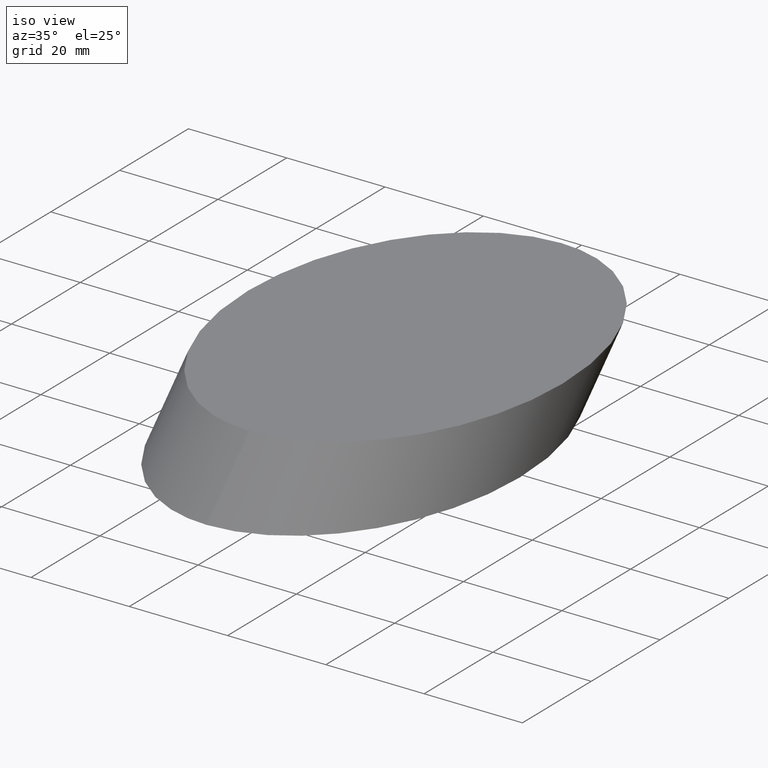
[diagram: clean part render]
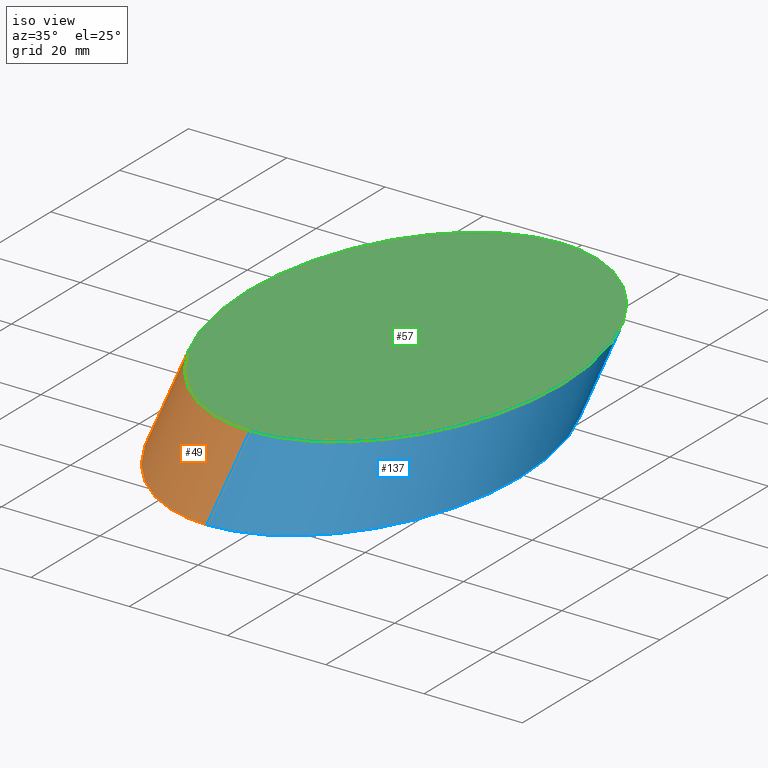
[diagram: same view with three faces highlighted in distinct colors, each labeled with its STEP entity id]
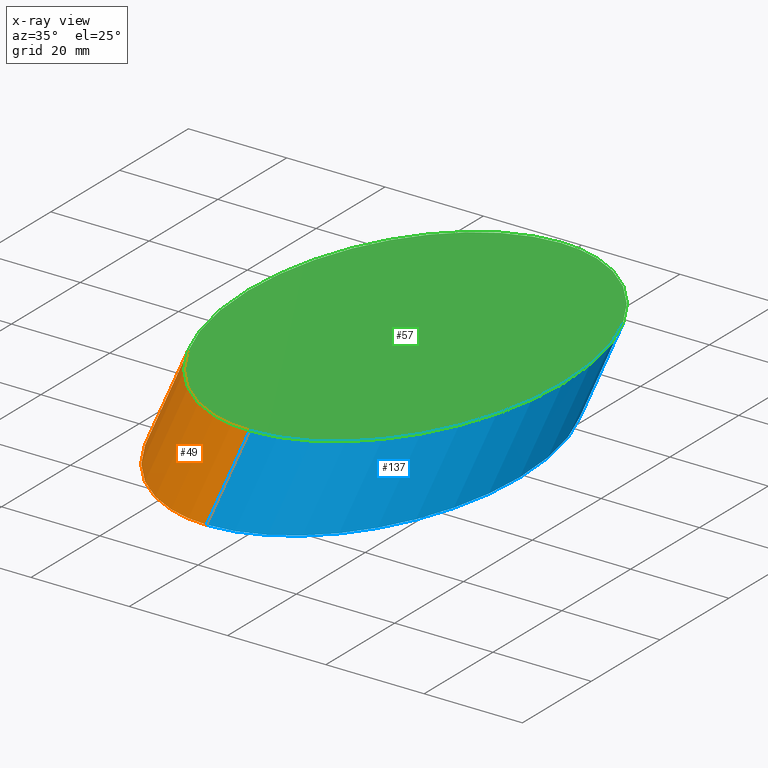
[diagram: x-ray of the same camera — body ghosted, the three highlighted faces saturated]
A machine part, iso view with three faces highlighted in distinct colors.
The next image is the same camera in x-ray (body ghosted, the three faces saturated) — at least one of them is partly hidden behind the body in this view.
Their STEP definitions:

[orange] entity #49 — the highlighted face is a freeform B-spline surface patch.
#1 = CARTESIAN_POINT ( 'NONE',  ( 54.39238298171604700, -9.471128469677900300, -8.673617379884035500E-015 ) ) ;
#4 = ORIENTED_EDGE ( 'NONE', *, *, #139, .T. ) ;
#5 = CARTESIAN_POINT ( 'NONE',  ( -9.607617018283935600, 81.04887153032210300, 0.0000000000000000000 ) ) ;
#10 = VERTEX_POINT ( 'NONE', #103 ) ;
#12 = CARTESIAN_POINT ( 'NONE',  ( -9.607617018283940900, 3.030519421700327500, 12.50164789137811800 ) ) ;
#14 = CARTESIAN_POINT ( 'NONE',  ( 54.39238298171605400, 93.55051942170031500, 12.50164789137811800 ) ) ;
#15 = ORIENTED_EDGE ( 'NONE', *, *, #58, .F. ) ;
#17 = CARTESIAN_POINT ( 'NONE',  ( 54.39238298171605400, 93.55051942170031500, 12.50164789137811800 ) ) ;
#24 = VECTOR ( 'NONE', #108, 1000.000000000000100 ) ;
#26 = FACE_OUTER_BOUND ( 'NONE', #113, .T. ) ;
#31 =( BOUNDED_CURVE ( )  B_SPLINE_CURVE ( 3, ( #14, #147, #12, #102 ),
 .UNSPECIFIED., .F., .T. ) 
 B_SPLINE_CURVE_WITH_KNOTS ( ( 4, 4 ),
 ( 0.0000000000000000000, 3.141592653589793100 ),
 .UNSPECIFIED. ) 
 CURVE ( )  GEOMETRIC_REPRESENTATION_ITEM ( )  RATIONAL_B_SPLINE_CURVE ( ( 1.000000000000000000, 0.3333333333333333700, 0.3333333333333333700, 1.000000000000000000 ) ) 
 REPRESENTATION_ITEM ( '' )  );
#37 = EDGE_CURVE ( 'NONE', #141, #92, #88, .T. ) ;
#38 = CARTESIAN_POINT ( 'NONE',  ( 54.39238298171605400, 81.04887153032210300, 0.0000000000000000000 ) ) ;
#40 = CARTESIAN_POINT ( 'NONE',  ( 54.39238298171605400, 81.04887153032210300, 0.0000000000000000000 ) ) ;
#42 = CARTESIAN_POINT ( 'NONE',  ( 54.39238298171604700, -9.471128469677889700, 0.0000000000000000000 ) ) ;
#47 =( BOUNDED_CURVE ( )  B_SPLINE_CURVE ( 3, ( #40, #5, #67, #42 ),
 .UNSPECIFIED., .F., .F. ) 
 B_SPLINE_CURVE_WITH_KNOTS ( ( 4, 4 ),
 ( 0.0000000000000000000, 3.141592653589793100 ),
 .UNSPECIFIED. ) 
 CURVE ( )  GEOMETRIC_REPRESENTATION_ITEM ( )  RATIONAL_B_SPLINE_CURVE ( ( 1.000000000000000000, 0.3333333333333333700, 0.3333333333333333700, 1.000000000000000000 ) ) 
 REPRESENTATION_ITEM ( '' )  );
#48 = CARTESIAN_POINT ( 'NONE',  ( -9.607617018283940900, 3.030519421700327500, 12.50164789137812200 ) ) ;
#49 = ADVANCED_FACE ( 'NONE', ( #26 ), #74, .F. ) ;
#50 = CARTESIAN_POINT ( 'NONE',  ( -9.607617018283940900, -9.471128469677887900, -7.806255641895630300E-015 ) ) ;
#51 = CARTESIAN_POINT ( 'NONE',  ( 54.39238298171604700, 3.030519421700316000, 12.50164789137811800 ) ) ;
#53 = LINE ( 'NONE', #122, #24 ) ;
#58 = EDGE_CURVE ( 'NONE', #141, #94, #31, .T. ) ;
#66 = VECTOR ( 'NONE', #118, 1000.000000000000100 ) ;
#67 = CARTESIAN_POINT ( 'NONE',  ( -9.607617018283940900, -9.471128469677877200, 0.0000000000000000000 ) ) ;
#74 =( BOUNDED_SURFACE ( )  B_SPLINE_SURFACE ( 3, 1, ( 
 ( #96, #95 ),
 ( #127, #117 ),
 ( #48, #50 ),
 ( #126, #1 ) ),
 .UNSPECIFIED., .F., .F., .T. ) 
 B_SPLINE_SURFACE_WITH_KNOTS ( ( 4, 4 ),
 ( 2, 2 ),
 ( 0.0000000000000000000, 1.000000000000000000 ),
 ( 0.0000000000000000000, 1.000000000000000000 ),
 .UNSPECIFIED. ) 
 GEOMETRIC_REPRESENTATION_ITEM ( )  RATIONAL_B_SPLINE_SURFACE ( (
 ( 1.000000000000000000, 1.000000000000000000),
 ( 0.3333333333333333700, 0.3333333333333333700),
 ( 0.3333333333333333700, 0.3333333333333333700),
 ( 1.000000000000000000, 1.000000000000000000) ) ) 
 REPRESENTATION_ITEM ( '' )  SURFACE ( )  );
#84 = CARTESIAN_POINT ( 'NONE',  ( 54.39238298171605400, 93.55051942170031500, 12.50164789137811800 ) ) ;
#88 = LINE ( 'NONE', #84, #66 ) ;
#90 = EDGE_CURVE ( 'NONE', #94, #10, #53, .T. ) ;
#92 = VERTEX_POINT ( 'NONE', #38 ) ;
#94 = VERTEX_POINT ( 'NONE', #51 ) ;
#95 = CARTESIAN_POINT ( 'NONE',  ( 54.39238298171605400, 81.04887153032210300, -8.673617379884035500E-015 ) ) ;
#96 = CARTESIAN_POINT ( 'NONE',  ( 54.39238298171605400, 93.55051942170031500, 12.50164789137812000 ) ) ;
#102 = CARTESIAN_POINT ( 'NONE',  ( 54.39238298171604700, 3.030519421700316000, 12.50164789137811800 ) ) ;
#103 = CARTESIAN_POINT ( 'NONE',  ( 54.39238298171604700, -9.471128469677889700, 0.0000000000000000000 ) ) ;
#108 = DIRECTION ( 'NONE',  ( 0.0000000000000000000, -0.7071067811865500200, -0.7071067811865451300 ) ) ;
#112 = ORIENTED_EDGE ( 'NONE', *, *, #90, .F. ) ;
#113 = EDGE_LOOP ( 'NONE', ( #112, #15, #130, #4 ) ) ;
#117 = CARTESIAN_POINT ( 'NONE',  ( -9.607617018283935600, 81.04887153032208900, -7.806255641895630300E-015 ) ) ;
#118 = DIRECTION ( 'NONE',  ( 0.0000000000000000000, -0.7071067811865500200, -0.7071067811865451300 ) ) ;
#122 = CARTESIAN_POINT ( 'NONE',  ( 54.39238298171604700, 3.030519421700316000, 12.50164789137811800 ) ) ;
#126 = CARTESIAN_POINT ( 'NONE',  ( 54.39238298171604700, 3.030519421700316000, 12.50164789137812000 ) ) ;
#127 = CARTESIAN_POINT ( 'NONE',  ( -9.607617018283935600, 93.55051942170031500, 12.50164789137812200 ) ) ;
#130 = ORIENTED_EDGE ( 'NONE', *, *, #37, .T. ) ;
#139 = EDGE_CURVE ( 'NONE', #92, #10, #47, .T. ) ;
#141 = VERTEX_POINT ( 'NONE', #17 ) ;
#147 = CARTESIAN_POINT ( 'NONE',  ( -9.607617018283935600, 93.55051942170031500, 12.50164789137811800 ) ) ;

[blue] entity #137 — the highlighted face is a freeform B-spline surface patch.
#3 = CARTESIAN_POINT ( 'NONE',  ( 118.3923829817160300, 3.030519421700304400, 12.50164789137811800 ) ) ;
#6 = CARTESIAN_POINT ( 'NONE',  ( 54.39238298171605400, 93.55051942170031500, 12.50164789137811800 ) ) ;
#10 = VERTEX_POINT ( 'NONE', #103 ) ;
#11 = EDGE_LOOP ( 'NONE', ( #43, #148, #39, #46 ) ) ;
#16 = CARTESIAN_POINT ( 'NONE',  ( 118.3923829817160400, 93.55051942170031500, 12.50164789137811800 ) ) ;
#17 = CARTESIAN_POINT ( 'NONE',  ( 54.39238298171605400, 93.55051942170031500, 12.50164789137811800 ) ) ;
#19 = CARTESIAN_POINT ( 'NONE',  ( 118.3923829817160400, 3.030519421700304900, 12.50164789137811800 ) ) ;
#24 = VECTOR ( 'NONE', #108, 1000.000000000000100 ) ;
#29 = EDGE_CURVE ( 'NONE', #10, #92, #91, .T. ) ;
#32 = CARTESIAN_POINT ( 'NONE',  ( 54.39238298171605400, 81.04887153032210300, 0.0000000000000000000 ) ) ;
#37 = EDGE_CURVE ( 'NONE', #141, #92, #88, .T. ) ;
#38 = CARTESIAN_POINT ( 'NONE',  ( 54.39238298171605400, 81.04887153032210300, 0.0000000000000000000 ) ) ;
#39 = ORIENTED_EDGE ( 'NONE', *, *, #29, .T. ) ;
#43 = ORIENTED_EDGE ( 'NONE', *, *, #115, .F. ) ;
#46 = ORIENTED_EDGE ( 'NONE', *, *, #37, .F. ) ;
#51 = CARTESIAN_POINT ( 'NONE',  ( 54.39238298171604700, 3.030519421700316000, 12.50164789137811800 ) ) ;
#52 = CARTESIAN_POINT ( 'NONE',  ( 54.39238298171604700, 3.030519421700316000, 12.50164789137811800 ) ) ;
#53 = LINE ( 'NONE', #122, #24 ) ;
#66 = VECTOR ( 'NONE', #118, 1000.000000000000100 ) ;
#71 = CARTESIAN_POINT ( 'NONE',  ( 54.39238298171604700, -9.471128469677889700, 0.0000000000000000000 ) ) ;
#72 = CARTESIAN_POINT ( 'NONE',  ( 118.3923829817160400, 81.04887153032208900, -5.204170427930420500E-015 ) ) ;
#73 = CARTESIAN_POINT ( 'NONE',  ( 54.39238298171605400, 81.04887153032210300, -5.204170427930421300E-015 ) ) ;
#75 = CARTESIAN_POINT ( 'NONE',  ( 54.39238298171605400, 93.55051942170031500, 12.50164789137811800 ) ) ;
#77 = FACE_OUTER_BOUND ( 'NONE', #11, .T. ) ;
#80 =( BOUNDED_CURVE ( )  B_SPLINE_CURVE ( 3, ( #52, #3, #98, #75 ),
 .UNSPECIFIED., .F., .F. ) 
 B_SPLINE_CURVE_WITH_KNOTS ( ( 4, 4 ),
 ( 3.141592653589793100, 6.283185307179586200 ),
 .UNSPECIFIED. ) 
 CURVE ( )  GEOMETRIC_REPRESENTATION_ITEM ( )  RATIONAL_B_SPLINE_CURVE ( ( 1.000000000000000000, 0.3333333333333333700, 0.3333333333333333700, 1.000000000000000000 ) ) 
 REPRESENTATION_ITEM ( '' )  );
#83 = CARTESIAN_POINT ( 'NONE',  ( 118.3923829817160300, -9.471128469677898600, 0.0000000000000000000 ) ) ;
#84 = CARTESIAN_POINT ( 'NONE',  ( 54.39238298171605400, 93.55051942170031500, 12.50164789137811800 ) ) ;
#87 = CARTESIAN_POINT ( 'NONE',  ( 118.3923829817160400, -9.471128469677907400, -5.204170427930420500E-015 ) ) ;
#88 = LINE ( 'NONE', #84, #66 ) ;
#90 = EDGE_CURVE ( 'NONE', #94, #10, #53, .T. ) ;
#91 =( BOUNDED_CURVE ( )  B_SPLINE_CURVE ( 3, ( #71, #83, #138, #32 ),
 .UNSPECIFIED., .F., .T. ) 
 B_SPLINE_CURVE_WITH_KNOTS ( ( 4, 4 ),
 ( 3.141592653589793100, 6.283185307179586200 ),
 .UNSPECIFIED. ) 
 CURVE ( )  GEOMETRIC_REPRESENTATION_ITEM ( )  RATIONAL_B_SPLINE_CURVE ( ( 1.000000000000000000, 0.3333333333333333700, 0.3333333333333333700, 1.000000000000000000 ) ) 
 REPRESENTATION_ITEM ( '' )  );
#92 = VERTEX_POINT ( 'NONE', #38 ) ;
#94 = VERTEX_POINT ( 'NONE', #51 ) ;
#98 = CARTESIAN_POINT ( 'NONE',  ( 118.3923829817160300, 93.55051942170031500, 12.50164789137811800 ) ) ;
#103 = CARTESIAN_POINT ( 'NONE',  ( 54.39238298171604700, -9.471128469677889700, 0.0000000000000000000 ) ) ;
#108 = DIRECTION ( 'NONE',  ( 0.0000000000000000000, -0.7071067811865500200, -0.7071067811865451300 ) ) ;
#115 = EDGE_CURVE ( 'NONE', #94, #141, #80, .T. ) ;
#118 = DIRECTION ( 'NONE',  ( 0.0000000000000000000, -0.7071067811865500200, -0.7071067811865451300 ) ) ;
#119 = CARTESIAN_POINT ( 'NONE',  ( 54.39238298171604700, 3.030519421700316000, 12.50164789137811800 ) ) ;
#120 =( BOUNDED_SURFACE ( )  B_SPLINE_SURFACE ( 3, 1, ( 
 ( #119, #121 ),
 ( #19, #87 ),
 ( #16, #72 ),
 ( #6, #73 ) ),
 .UNSPECIFIED., .F., .F., .F. ) 
 B_SPLINE_SURFACE_WITH_KNOTS ( ( 4, 4 ),
 ( 2, 2 ),
 ( 0.0000000000000000000, 1.000000000000000000 ),
 ( 0.0000000000000000000, 1.000000000000000000 ),
 .UNSPECIFIED. ) 
 GEOMETRIC_REPRESENTATION_ITEM ( )  RATIONAL_B_SPLINE_SURFACE ( (
 ( 1.000000000000000000, 1.000000000000000000),
 ( 0.3333333333333333700, 0.3333333333333333700),
 ( 0.3333333333333333700, 0.3333333333333333700),
 ( 1.000000000000000000, 1.000000000000000000) ) ) 
 REPRESENTATION_ITEM ( '' )  SURFACE ( )  );
#121 = CARTESIAN_POINT ( 'NONE',  ( 54.39238298171604700, -9.471128469677895000, -5.204170427930421300E-015 ) ) ;
#122 = CARTESIAN_POINT ( 'NONE',  ( 54.39238298171604700, 3.030519421700316000, 12.50164789137811800 ) ) ;
#137 = ADVANCED_FACE ( 'NONE', ( #77 ), #120, .F. ) ;
#138 = CARTESIAN_POINT ( 'NONE',  ( 118.3923829817160300, 81.04887153032210300, 0.0000000000000000000 ) ) ;
#141 = VERTEX_POINT ( 'NONE', #17 ) ;
#148 = ORIENTED_EDGE ( 'NONE', *, *, #90, .T. ) ;

[green] entity #57 — the highlighted planar face has unit normal (0, 0, 1).
#3 = CARTESIAN_POINT ( 'NONE',  ( 118.3923829817160300, 3.030519421700304400, 12.50164789137811800 ) ) ;
#12 = CARTESIAN_POINT ( 'NONE',  ( -9.607617018283940900, 3.030519421700327500, 12.50164789137811800 ) ) ;
#14 = CARTESIAN_POINT ( 'NONE',  ( 54.39238298171605400, 93.55051942170031500, 12.50164789137811800 ) ) ;
#17 = CARTESIAN_POINT ( 'NONE',  ( 54.39238298171605400, 93.55051942170031500, 12.50164789137811800 ) ) ;
#28 = EDGE_LOOP ( 'NONE', ( #145, #107 ) ) ;
#31 =( BOUNDED_CURVE ( )  B_SPLINE_CURVE ( 3, ( #14, #147, #12, #102 ),
 .UNSPECIFIED., .F., .T. ) 
 B_SPLINE_CURVE_WITH_KNOTS ( ( 4, 4 ),
 ( 0.0000000000000000000, 3.141592653589793100 ),
 .UNSPECIFIED. ) 
 CURVE ( )  GEOMETRIC_REPRESENTATION_ITEM ( )  RATIONAL_B_SPLINE_CURVE ( ( 1.000000000000000000, 0.3333333333333333700, 0.3333333333333333700, 1.000000000000000000 ) ) 
 REPRESENTATION_ITEM ( '' )  );
#51 = CARTESIAN_POINT ( 'NONE',  ( 54.39238298171604700, 3.030519421700316000, 12.50164789137811800 ) ) ;
#52 = CARTESIAN_POINT ( 'NONE',  ( 54.39238298171604700, 3.030519421700316000, 12.50164789137811800 ) ) ;
#57 = ADVANCED_FACE ( 'NONE', ( #114 ), #146, .T. ) ;
#58 = EDGE_CURVE ( 'NONE', #141, #94, #31, .T. ) ;
#60 = DIRECTION ( 'NONE',  ( 1.000000000000000000, 0.0000000000000000000, -0.0000000000000000000 ) ) ;
#75 = CARTESIAN_POINT ( 'NONE',  ( 54.39238298171605400, 93.55051942170031500, 12.50164789137811800 ) ) ;
#80 =( BOUNDED_CURVE ( )  B_SPLINE_CURVE ( 3, ( #52, #3, #98, #75 ),
 .UNSPECIFIED., .F., .F. ) 
 B_SPLINE_CURVE_WITH_KNOTS ( ( 4, 4 ),
 ( 3.141592653589793100, 6.283185307179586200 ),
 .UNSPECIFIED. ) 
 CURVE ( )  GEOMETRIC_REPRESENTATION_ITEM ( )  RATIONAL_B_SPLINE_CURVE ( ( 1.000000000000000000, 0.3333333333333333700, 0.3333333333333333700, 1.000000000000000000 ) ) 
 REPRESENTATION_ITEM ( '' )  );
#82 = DIRECTION ( 'NONE',  ( 0.0000000000000000000, 0.0000000000000000000, 1.000000000000000000 ) ) ;
#94 = VERTEX_POINT ( 'NONE', #51 ) ;
#98 = CARTESIAN_POINT ( 'NONE',  ( 118.3923829817160300, 93.55051942170031500, 12.50164789137811800 ) ) ;
#102 = CARTESIAN_POINT ( 'NONE',  ( 54.39238298171604700, 3.030519421700316000, 12.50164789137811800 ) ) ;
#107 = ORIENTED_EDGE ( 'NONE', *, *, #115, .T. ) ;
#114 = FACE_OUTER_BOUND ( 'NONE', #28, .T. ) ;
#115 = EDGE_CURVE ( 'NONE', #94, #141, #80, .T. ) ;
#135 = CARTESIAN_POINT ( 'NONE',  ( 54.39238298171605400, 48.29051942170031000, 12.50164789137811800 ) ) ;
#141 = VERTEX_POINT ( 'NONE', #17 ) ;
#144 = AXIS2_PLACEMENT_3D ( 'NONE', #135, #82, #60 ) ;
#145 = ORIENTED_EDGE ( 'NONE', *, *, #58, .T. ) ;
#146 = PLANE ( 'NONE',  #144 ) ;
#147 = CARTESIAN_POINT ( 'NONE',  ( -9.607617018283935600, 93.55051942170031500, 12.50164789137811800 ) ) ;